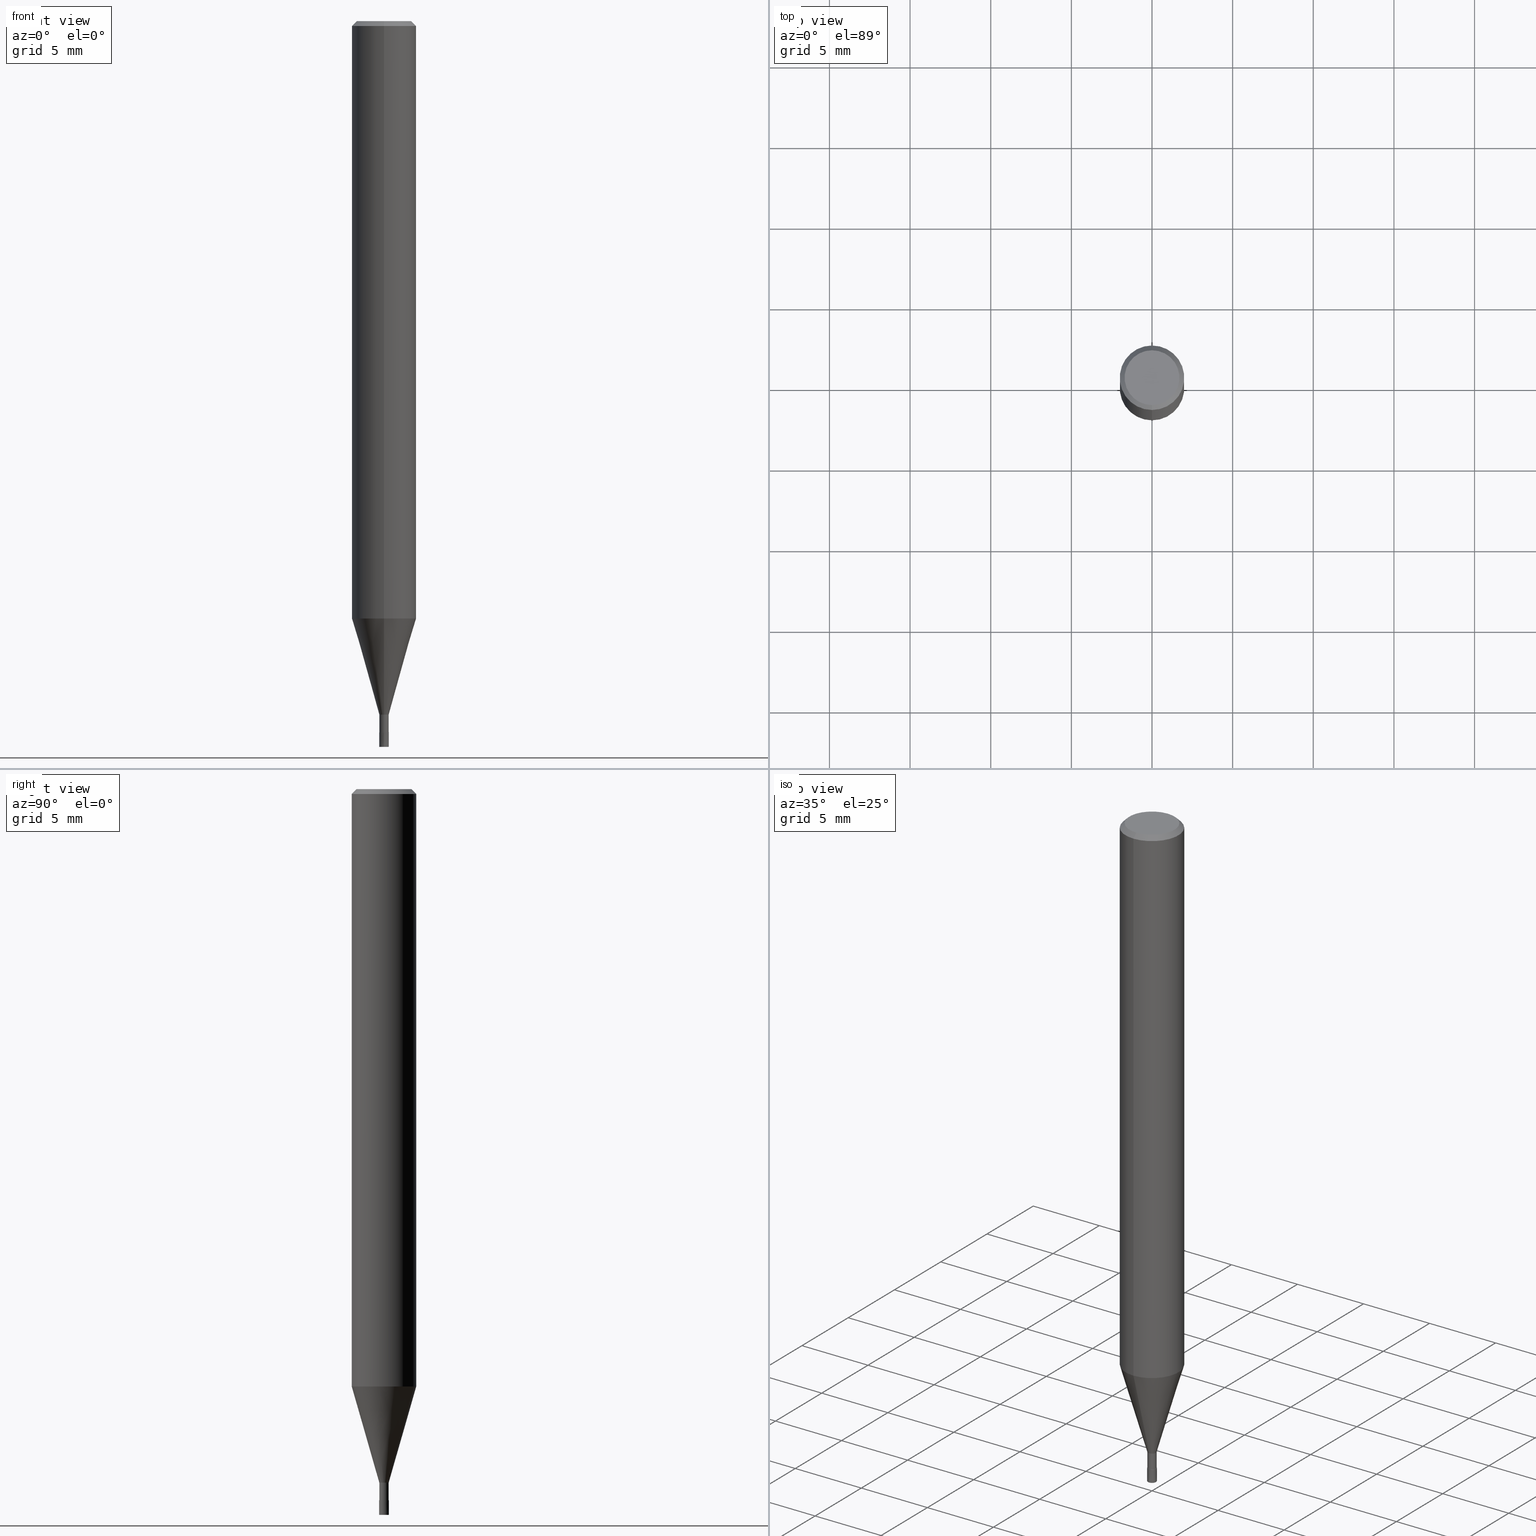
[diagram: canonical four-view strip — front | top / right | iso, engineering-drawing reading convention]
A machine part, canonical four-view strip (front | top / right | iso — engineering-drawing reading convention). The complete STEP part file that produces these views, byte-faithful:
ISO-10303-21;
HEADER;
FILE_DESCRIPTION(('no description'),'unknown implementation level');
FILE_NAME('HLS2006-020-Huellk.stp','  ',('CIMSOURCE GmbH'),('CADClick - KiM GmbH - www.kimweb.de'),'unknown preprocess','ACIS','unknown authorization');
FILE_SCHEMA(('automotive_design'));
ENDSEC;
DATA;
#1=MECHANICAL_DESIGN_GEOMETRIC_PRESENTATION_REPRESENTATION(' ',(#14,#15,#16,#17,#18,#19,#20,#21,#22,#23,#24,#25,#26,#27,#28,#29,#30,#31,#32,#33,#34,#35,#36,#37,#38,#39,#40,#41,#42,#43,#44,#45,#46,#47,#48,#49,#50,#51,#52,#53,#54,#55,#56,#57,#58,#59,#60,#61,#62,#63,#64,#65,#66,#67,#68,#69,#70,#71,#72),#10);
#2=PRODUCT_DEFINITION_CONTEXT('',#73,'design');
#3=APPLICATION_PROTOCOL_DEFINITION('INTERNATIONAL STANDARD','automotive_design',1994,#73);
#4=PRODUCT_CATEGORY_RELATIONSHIP('NONE','NONE',#74,#75);
#5=SHAPE_DEFINITION_REPRESENTATION(#76,#77);
#6=PRODUCT_DEFINITION_CONTEXT('',#78,'design');
#7=APPLICATION_PROTOCOL_DEFINITION('INTERNATIONAL STANDARD','automotive_design',1994,#78);
#8=PRODUCT_CATEGORY_RELATIONSHIP('NONE','NONE',#79,#80);
#9=SHAPE_DEFINITION_REPRESENTATION(#81,#82);
#10= (GEOMETRIC_REPRESENTATION_CONTEXT(3)GLOBAL_UNCERTAINTY_ASSIGNED_CONTEXT((#85))GLOBAL_UNIT_ASSIGNED_CONTEXT((#87,#88,#89))REPRESENTATION_CONTEXT('NONE','WORKSPACE'));
#14=STYLED_ITEM('',(#91),#92);
#15=STYLED_ITEM('',(#93),#94);
#16=STYLED_ITEM('',(#95),#96);
#17=STYLED_ITEM('',(#97),#98);
#18=STYLED_ITEM('',(#99),#100);
#19=STYLED_ITEM('',(#101),#102);
#20=STYLED_ITEM('',(#103),#104);
#21=STYLED_ITEM('',(#105),#106);
#22=STYLED_ITEM('',(#107),#108);
#23=STYLED_ITEM('',(#109),#110);
#24=STYLED_ITEM('',(#111),#112);
#25=STYLED_ITEM('',(#113),#114);
#26=STYLED_ITEM('',(#115),#116);
#27=STYLED_ITEM('',(#117),#118);
#28=STYLED_ITEM('',(#119),#120);
#29=STYLED_ITEM('',(#121),#122);
#30=STYLED_ITEM('',(#123),#124);
#31=STYLED_ITEM('',(#125),#126);
#32=STYLED_ITEM('',(#127),#128);
#33=STYLED_ITEM('',(#129),#130);
#34=STYLED_ITEM('',(#131),#132);
#35=STYLED_ITEM('',(#133),#134);
#36=STYLED_ITEM('',(#135),#136);
#37=STYLED_ITEM('',(#137),#138);
#38=STYLED_ITEM('',(#139),#140);
#39=STYLED_ITEM('',(#141),#142);
#40=STYLED_ITEM('',(#143),#144);
#41=STYLED_ITEM('',(#145),#146);
#42=STYLED_ITEM('',(#147),#148);
#43=STYLED_ITEM('',(#149),#150);
#44=STYLED_ITEM('',(#151),#152);
#45=STYLED_ITEM('',(#153),#154);
#46=STYLED_ITEM('',(#155),#156);
#47=STYLED_ITEM('',(#157),#158);
#48=STYLED_ITEM('',(#159),#160);
#49=STYLED_ITEM('',(#161),#162);
#50=STYLED_ITEM('',(#163),#164);
#51=STYLED_ITEM('',(#165),#166);
#52=STYLED_ITEM('',(#167),#168);
#53=STYLED_ITEM('',(#169),#170);
#54=STYLED_ITEM('',(#171),#172);
#55=STYLED_ITEM('',(#173),#174);
#56=STYLED_ITEM('',(#175),#176);
#57=STYLED_ITEM('',(#177),#178);
#58=STYLED_ITEM('',(#179),#180);
#59=STYLED_ITEM('',(#181),#182);
#60=STYLED_ITEM('',(#183),#184);
#61=STYLED_ITEM('',(#185),#186);
#62=STYLED_ITEM('',(#187),#188);
#63=STYLED_ITEM('',(#189),#190);
#64=STYLED_ITEM('',(#191),#192);
#65=STYLED_ITEM('',(#193),#194);
#66=STYLED_ITEM('',(#195),#196);
#67=STYLED_ITEM('',(#197),#198);
#68=STYLED_ITEM('',(#199),#200);
#69=STYLED_ITEM('',(#201),#202);
#70=STYLED_ITEM('',(#203),#204);
#71=STYLED_ITEM('',(#205),#206);
#72=STYLED_ITEM('',(#207),#208);
#73=APPLICATION_CONTEXT(' ');
#74=PRODUCT_CATEGORY('part','NONE');
#75=PRODUCT_RELATED_PRODUCT_CATEGORY('detail',' ',(#209));
#76=PRODUCT_DEFINITION_SHAPE('NONE','NONE',#210);
#77=ADVANCED_BREP_SHAPE_REPRESENTATION('1',(#100,#211),#10);
#78=APPLICATION_CONTEXT(' ');
#79=PRODUCT_CATEGORY('part','NONE');
#80=PRODUCT_RELATED_PRODUCT_CATEGORY('detail',' ',(#212));
#81=PRODUCT_DEFINITION_SHAPE('NONE','NONE',#213);
#82=ADVANCED_BREP_SHAPE_REPRESENTATION('2',(#174,#214),#10);
#85=UNCERTAINTY_MEASURE_WITH_UNIT(LENGTH_MEASURE(1.0E-006),#87,'','');
#87= (CONVERSION_BASED_UNIT('MILLIMETRE',#217)LENGTH_UNIT()NAMED_UNIT(#220));
#88= (NAMED_UNIT(#222)PLANE_ANGLE_UNIT()SI_UNIT($,.RADIAN.));
#89= (NAMED_UNIT(#222)SOLID_ANGLE_UNIT()SI_UNIT($,.STERADIAN.));
#91=PRESENTATION_STYLE_ASSIGNMENT((#228));
#92=EDGE_CURVE('',#172,#166,#229,.T.);
#93=PRESENTATION_STYLE_ASSIGNMENT((#230));
#94=VERTEX_POINT('',#231);
#95=PRESENTATION_STYLE_ASSIGNMENT((#232));
#96=EDGE_CURVE('',#144,#128,#233,.T.);
#97=PRESENTATION_STYLE_ASSIGNMENT((#234));
#98=VERTEX_POINT('',#235);
#99=PRESENTATION_STYLE_ASSIGNMENT((#236));
#100=MANIFOLD_SOLID_BREP('1',#237);
#101=PRESENTATION_STYLE_ASSIGNMENT((#238));
#102=EDGE_CURVE('',#162,#182,#239,.T.);
#103=PRESENTATION_STYLE_ASSIGNMENT((#240));
#104=ADVANCED_FACE('',(#241),#242,.T.);
#105=PRESENTATION_STYLE_ASSIGNMENT((#243));
#106=EDGE_CURVE('',#98,#94,#244,.T.);
#107=PRESENTATION_STYLE_ASSIGNMENT((#245));
#108=EDGE_CURVE('',#168,#94,#246,.T.);
#109=PRESENTATION_STYLE_ASSIGNMENT((#247));
#110=ADVANCED_FACE('',(#248),#249,.T.);
#111=PRESENTATION_STYLE_ASSIGNMENT((#250));
#112=VERTEX_POINT('',#251);
#113=PRESENTATION_STYLE_ASSIGNMENT((#252));
#114=VERTEX_POINT('',#253);
#115=PRESENTATION_STYLE_ASSIGNMENT((#254));
#116=ADVANCED_FACE('',(#255),#256,.T.);
#117=PRESENTATION_STYLE_ASSIGNMENT((#257));
#118=EDGE_CURVE('',#166,#206,#258,.T.);
#119=PRESENTATION_STYLE_ASSIGNMENT((#259));
#120=VERTEX_POINT('',#260);
#121=PRESENTATION_STYLE_ASSIGNMENT((#261));
#122=EDGE_CURVE('',#198,#120,#262,.T.);
#123=PRESENTATION_STYLE_ASSIGNMENT((#263));
#124=EDGE_CURVE('',#154,#206,#264,.T.);
#125=PRESENTATION_STYLE_ASSIGNMENT((#265));
#126=EDGE_CURVE('',#112,#172,#266,.T.);
#127=PRESENTATION_STYLE_ASSIGNMENT((#267));
#128=VERTEX_POINT('',#268);
#129=PRESENTATION_STYLE_ASSIGNMENT((#269));
#130=ADVANCED_FACE('',(#270),#271,.T.);
#131=PRESENTATION_STYLE_ASSIGNMENT((#272));
#132=EDGE_CURVE('',#98,#180,#273,.T.);
#133=PRESENTATION_STYLE_ASSIGNMENT((#274));
#134=ADVANCED_FACE('',(#275),#276,.T.);
#135=PRESENTATION_STYLE_ASSIGNMENT((#277));
#136=EDGE_CURVE('',#172,#112,#278,.T.);
#137=PRESENTATION_STYLE_ASSIGNMENT((#279));
#138=EDGE_CURVE('',#206,#166,#280,.T.);
#139=PRESENTATION_STYLE_ASSIGNMENT((#281));
#140=EDGE_CURVE('',#206,#112,#282,.T.);
#141=PRESENTATION_STYLE_ASSIGNMENT((#283));
#142=EDGE_CURVE('',#94,#98,#284,.T.);
#143=PRESENTATION_STYLE_ASSIGNMENT((#285));
#144=VERTEX_POINT('',#286);
#145=PRESENTATION_STYLE_ASSIGNMENT((#287));
#146=ADVANCED_FACE('',(#288),#289,.T.);
#147=PRESENTATION_STYLE_ASSIGNMENT((#290));
#148=EDGE_CURVE('',#168,#180,#291,.T.);
#149=PRESENTATION_STYLE_ASSIGNMENT((#292));
#150=ADVANCED_FACE('',(#293,#294),#295,.T.);
#151=PRESENTATION_STYLE_ASSIGNMENT((#296));
#152=EDGE_CURVE('',#154,#114,#297,.T.);
#153=PRESENTATION_STYLE_ASSIGNMENT((#298));
#154=VERTEX_POINT('',#299);
#155=PRESENTATION_STYLE_ASSIGNMENT((#300));
#156=EDGE_CURVE('',#180,#168,#301,.T.);
#157=PRESENTATION_STYLE_ASSIGNMENT((#302));
#158=ADVANCED_FACE('',(#303),#304,.T.);
#159=PRESENTATION_STYLE_ASSIGNMENT((#305));
#160=EDGE_CURVE('',#144,#182,#306,.T.);
#161=PRESENTATION_STYLE_ASSIGNMENT((#307));
#162=VERTEX_POINT('',#308);
#163=PRESENTATION_STYLE_ASSIGNMENT((#309));
#164=EDGE_CURVE('',#120,#198,#310,.T.);
#165=PRESENTATION_STYLE_ASSIGNMENT((#311));
#166=VERTEX_POINT('',#312);
#167=PRESENTATION_STYLE_ASSIGNMENT((#313));
#168=VERTEX_POINT('',#314);
#169=PRESENTATION_STYLE_ASSIGNMENT((#315));
#170=EDGE_CURVE('',#162,#128,#316,.T.);
#171=PRESENTATION_STYLE_ASSIGNMENT((#317));
#172=VERTEX_POINT('',#318);
#173=PRESENTATION_STYLE_ASSIGNMENT((#319));
#174=MANIFOLD_SOLID_BREP('2',#320);
#175=PRESENTATION_STYLE_ASSIGNMENT((#321));
#176=EDGE_CURVE('',#128,#144,#322,.T.);
#177=PRESENTATION_STYLE_ASSIGNMENT((#323));
#178=ADVANCED_FACE('',(#324),#325,.T.);
#179=PRESENTATION_STYLE_ASSIGNMENT((#326));
#180=VERTEX_POINT('',#327);
#181=PRESENTATION_STYLE_ASSIGNMENT((#328));
#182=VERTEX_POINT('',#329);
#183=PRESENTATION_STYLE_ASSIGNMENT((#330));
#184=ADVANCED_FACE('',(#331),#332,.T.);
#185=PRESENTATION_STYLE_ASSIGNMENT((#333));
#186=EDGE_CURVE('',#198,#98,#334,.T.);
#187=PRESENTATION_STYLE_ASSIGNMENT((#335));
#188=EDGE_CURVE('',#114,#154,#336,.T.);
#189=PRESENTATION_STYLE_ASSIGNMENT((#337));
#190=EDGE_CURVE('',#166,#114,#338,.T.);
#191=PRESENTATION_STYLE_ASSIGNMENT((#339));
#192=EDGE_CURVE('',#182,#162,#340,.T.);
#193=PRESENTATION_STYLE_ASSIGNMENT((#341));
#194=ADVANCED_FACE('',(#342),#343,.T.);
#195=PRESENTATION_STYLE_ASSIGNMENT((#344));
#196=ADVANCED_FACE('',(#345),#346,.T.);
#197=PRESENTATION_STYLE_ASSIGNMENT((#347));
#198=VERTEX_POINT('',#348);
#199=PRESENTATION_STYLE_ASSIGNMENT((#349));
#200=ADVANCED_FACE('',(#350),#351,.T.);
#201=PRESENTATION_STYLE_ASSIGNMENT((#352));
#202=EDGE_CURVE('',#94,#120,#353,.T.);
#203=PRESENTATION_STYLE_ASSIGNMENT((#354));
#204=ADVANCED_FACE('',(#355),#356,.T.);
#205=PRESENTATION_STYLE_ASSIGNMENT((#357));
#206=VERTEX_POINT('',#358);
#207=PRESENTATION_STYLE_ASSIGNMENT((#359));
#208=ADVANCED_FACE('',(#360),#361,.T.);
#209=PRODUCT('1','1','PART-1-DESC',(#362));
#210=PRODUCT_DEFINITION('NONE','NONE',#363,#2);
#211=AXIS2_PLACEMENT_3D('',#364,#365,#366);
#212=PRODUCT('2','2','PART-2-DESC',(#367));
#213=PRODUCT_DEFINITION('NONE','NONE',#368,#6);
#214=AXIS2_PLACEMENT_3D('',#369,#370,#371);
#217=LENGTH_MEASURE_WITH_UNIT(LENGTH_MEASURE(1.0),#372);
#220=DIMENSIONAL_EXPONENTS(1.0,0.0,0.0,0.0,0.0,0.0,0.0);
#222=DIMENSIONAL_EXPONENTS(0.0,0.0,0.0,0.0,0.0,0.0,0.0);
#228=CURVE_STYLE('',#373,POSITIVE_LENGTH_MEASURE(1.0E-006),#374);
#229=LINE('',#375,#376);
#230=POINT_STYLE(' ',#377,POSITIVE_LENGTH_MEASURE(1.0E-006),#378);
#231=CARTESIAN_POINT('',(0.0,2.0,-0.299999999999997));
#232=CURVE_STYLE('',#379,POSITIVE_LENGTH_MEASURE(1.0E-006),#380);
#233=CIRCLE('',#381,0.2999);
#234=POINT_STYLE(' ',#382,POSITIVE_LENGTH_MEASURE(1.0E-006),#383);
#235=CARTESIAN_POINT('',(2.44921270764475E-016,-2.0,-0.299999999999997));
#236=SURFACE_STYLE_USAGE(.BOTH.,#384);
#237=CLOSED_SHELL('',(#184,#196,#200,#130,#150,#146,#116,#194,#178,#204,#134));
#238=CURVE_STYLE('',#385,POSITIVE_LENGTH_MEASURE(1.0E-006),#386);
#239=CIRCLE('',#387,0.3);
#240=SURFACE_STYLE_USAGE(.BOTH.,#388);
#241=FACE_OUTER_BOUND('',#389,.T.);
#242=PLANE('',#390);
#243=CURVE_STYLE('',#391,POSITIVE_LENGTH_MEASURE(1.0E-006),#392);
#244=CIRCLE('',#393,2.0);
#245=CURVE_STYLE('',#394,POSITIVE_LENGTH_MEASURE(1.0E-006),#395);
#246=LINE('',#396,#397);
#247=SURFACE_STYLE_USAGE(.BOTH.,#398);
#248=FACE_OUTER_BOUND('',#399,.T.);
#249=CONICAL_SURFACE('',#400,0.29995,0.000111111110653851);
#250=POINT_STYLE(' ',#401,POSITIVE_LENGTH_MEASURE(1.0E-006),#402);
#251=CARTESIAN_POINT('',(2.44915147732706E-016,-1.99995,-37.037));
#252=POINT_STYLE(' ',#403,POSITIVE_LENGTH_MEASURE(1.0E-006),#404);
#253=CARTESIAN_POINT('',(0.0,0.28995,-44.1));
#254=SURFACE_STYLE_USAGE(.BOTH.,#405);
#255=FACE_OUTER_BOUND('',#406,.T.);
#256=CONICAL_SURFACE('',#407,1.85,0.785398163397453);
#257=CURVE_STYLE('',#408,POSITIVE_LENGTH_MEASURE(1.0E-006),#409);
#258=CIRCLE('',#410,0.28995);
#259=POINT_STYLE(' ',#411,POSITIVE_LENGTH_MEASURE(1.0E-006),#412);
#260=CARTESIAN_POINT('',(0.0,2.0,-37.037));
#261=CURVE_STYLE('',#413,POSITIVE_LENGTH_MEASURE(1.0E-006),#414);
#262=CIRCLE('',#415,2.0);
#263=CURVE_STYLE('',#416,POSITIVE_LENGTH_MEASURE(1.0E-006),#417);
#264=LINE('',#418,#419);
#265=CURVE_STYLE('',#420,POSITIVE_LENGTH_MEASURE(1.0E-006),#421);
#266=CIRCLE('',#422,1.99995);
#267=POINT_STYLE(' ',#423,POSITIVE_LENGTH_MEASURE(1.0E-006),#424);
#268=CARTESIAN_POINT('',(3.67259445511331E-017,-0.2999,-44.1));
#269=SURFACE_STYLE_USAGE(.BOTH.,#425);
#270=FACE_OUTER_BOUND('',#426,.T.);
#271=CONICAL_SURFACE('',#427,1.85,0.785398163397453);
#272=CURVE_STYLE('',#428,POSITIVE_LENGTH_MEASURE(1.0E-006),#429);
#273=LINE('',#430,#431);
#274=SURFACE_STYLE_USAGE(.BOTH.,#432);
#275=FACE_OUTER_BOUND('',#433,.T.);
#276=PLANE('',#434);
#277=CURVE_STYLE('',#435,POSITIVE_LENGTH_MEASURE(1.0E-006),#436);
#278=CIRCLE('',#437,1.99995);
#279=CURVE_STYLE('',#438,POSITIVE_LENGTH_MEASURE(1.0E-006),#439);
#280=CIRCLE('',#440,0.28995);
#281=CURVE_STYLE('',#441,POSITIVE_LENGTH_MEASURE(1.0E-006),#442);
#282=LINE('',#443,#444);
#283=CURVE_STYLE('',#445,POSITIVE_LENGTH_MEASURE(1.0E-006),#446);
#284=CIRCLE('',#447,2.0);
#285=POINT_STYLE(' ',#448,POSITIVE_LENGTH_MEASURE(1.0E-006),#449);
#286=CARTESIAN_POINT('',(0.0,0.2999,-44.1));
#287=SURFACE_STYLE_USAGE(.BOTH.,#450);
#288=FACE_OUTER_BOUND('',#451,.T.);
#289=PLANE('',#452);
#290=CURVE_STYLE('',#453,POSITIVE_LENGTH_MEASURE(1.0E-006),#454);
#291=CIRCLE('',#455,1.7);
#292=SURFACE_STYLE_USAGE(.BOTH.,#456);
#293=FACE_OUTER_BOUND('',#457,.T.);
#294=FACE_BOUND('',#458,.T.);
#295=PLANE('',#459);
#296=CURVE_STYLE('',#460,POSITIVE_LENGTH_MEASURE(1.0E-006),#461);
#297=CIRCLE('',#462,0.28995);
#298=POINT_STYLE(' ',#463,POSITIVE_LENGTH_MEASURE(1.0E-006),#464);
#299=CARTESIAN_POINT('',(3.55074612290798E-017,-0.28995,-44.1));
#300=CURVE_STYLE('',#465,POSITIVE_LENGTH_MEASURE(1.0E-006),#466);
#301=CIRCLE('',#467,1.7);
#302=SURFACE_STYLE_USAGE(.BOTH.,#468);
#303=FACE_OUTER_BOUND('',#469,.T.);
#304=CONICAL_SURFACE('',#470,0.29995,0.000111111110653851);
#305=CURVE_STYLE('',#471,POSITIVE_LENGTH_MEASURE(1.0E-006),#472);
#306=LINE('',#473,#474);
#307=POINT_STYLE(' ',#475,POSITIVE_LENGTH_MEASURE(1.0E-006),#476);
#308=CARTESIAN_POINT('',(3.67381906146713E-017,-0.3,-45.0));
#309=CURVE_STYLE('',#477,POSITIVE_LENGTH_MEASURE(1.0E-006),#478);
#310=CIRCLE('',#479,2.0);
#311=POINT_STYLE(' ',#480,POSITIVE_LENGTH_MEASURE(1.0E-006),#481);
#312=CARTESIAN_POINT('',(0.0,0.28995,-43.0));
#313=POINT_STYLE(' ',#482,POSITIVE_LENGTH_MEASURE(1.0E-006),#483);
#314=CARTESIAN_POINT('',(0.0,1.7,0.0));
#315=CURVE_STYLE('',#484,POSITIVE_LENGTH_MEASURE(1.0E-006),#485);
#316=LINE('',#486,#487);
#317=POINT_STYLE(' ',#488,POSITIVE_LENGTH_MEASURE(1.0E-006),#489);
#318=CARTESIAN_POINT('',(0.0,1.99995,-37.037));
#319=SURFACE_STYLE_USAGE(.BOTH.,#490);
#320=CLOSED_SHELL('',(#158,#104,#110,#208));
#321=CURVE_STYLE('',#491,POSITIVE_LENGTH_MEASURE(1.0E-006),#492);
#322=CIRCLE('',#493,0.2999);
#323=SURFACE_STYLE_USAGE(.BOTH.,#494);
#324=FACE_OUTER_BOUND('',#495,.T.);
#325=CONICAL_SURFACE('',#496,1.14495,0.279273950674422);
#326=POINT_STYLE(' ',#497,POSITIVE_LENGTH_MEASURE(1.0E-006),#498);
#327=CARTESIAN_POINT('',(2.08183080149804E-016,-1.7,0.0));
#328=POINT_STYLE(' ',#499,POSITIVE_LENGTH_MEASURE(1.0E-006),#500);
#329=CARTESIAN_POINT('',(0.0,0.3,-45.0));
#330=SURFACE_STYLE_USAGE(.BOTH.,#501);
#331=FACE_OUTER_BOUND('',#502,.T.);
#332=CYLINDRICAL_SURFACE('',#503,0.28995);
#333=CURVE_STYLE('',#504,POSITIVE_LENGTH_MEASURE(1.0E-006),#505);
#334=LINE('',#506,#507);
#335=CURVE_STYLE('',#508,POSITIVE_LENGTH_MEASURE(1.0E-006),#509);
#336=CIRCLE('',#510,0.28995);
#337=CURVE_STYLE('',#511,POSITIVE_LENGTH_MEASURE(1.0E-006),#512);
#338=LINE('',#513,#514);
#339=CURVE_STYLE('',#515,POSITIVE_LENGTH_MEASURE(1.0E-006),#516);
#340=CIRCLE('',#517,0.3);
#341=SURFACE_STYLE_USAGE(.BOTH.,#518);
#342=FACE_OUTER_BOUND('',#519,.T.);
#343=CYLINDRICAL_SURFACE('',#520,2.0);
#344=SURFACE_STYLE_USAGE(.BOTH.,#521);
#345=FACE_OUTER_BOUND('',#522,.T.);
#346=CONICAL_SURFACE('',#523,1.14495,0.279273950674422);
#347=POINT_STYLE(' ',#524,POSITIVE_LENGTH_MEASURE(1.0E-006),#525);
#348=CARTESIAN_POINT('',(2.44921270764475E-016,-2.0,-37.037));
#349=SURFACE_STYLE_USAGE(.BOTH.,#526);
#350=FACE_OUTER_BOUND('',#527,.T.);
#351=CYLINDRICAL_SURFACE('',#528,2.0);
#352=CURVE_STYLE('',#529,POSITIVE_LENGTH_MEASURE(1.0E-006),#530);
#353=LINE('',#531,#532);
#354=SURFACE_STYLE_USAGE(.BOTH.,#533);
#355=FACE_OUTER_BOUND('',#534,.T.);
#356=CYLINDRICAL_SURFACE('',#535,0.28995);
#357=POINT_STYLE(' ',#536,POSITIVE_LENGTH_MEASURE(1.0E-006),#537);
#358=CARTESIAN_POINT('',(3.55074612290798E-017,-0.28995,-43.0));
#359=SURFACE_STYLE_USAGE(.BOTH.,#538);
#360=FACE_OUTER_BOUND('',#539,.T.);
#361=PLANE('',#540);
#362=PRODUCT_CONTEXT('',#73,'mechanical');
#363=PRODUCT_DEFINITION_FORMATION_WITH_SPECIFIED_SOURCE(' ','NONE',#209,.NOT_KNOWN.);
#364=CARTESIAN_POINT('',(0.0,0.0,0.0));
#365=DIRECTION('',(0.0,0.0,1.0));
#366=DIRECTION('',(1.0,0.0,0.0));
#367=PRODUCT_CONTEXT('',#78,'mechanical');
#368=PRODUCT_DEFINITION_FORMATION_WITH_SPECIFIED_SOURCE(' ','NONE',#212,.NOT_KNOWN.);
#369=CARTESIAN_POINT('',(0.0,0.0,0.0));
#370=DIRECTION('',(0.0,0.0,1.0));
#371=DIRECTION('',(1.0,0.0,0.0));
#372= (NAMED_UNIT(#220)LENGTH_UNIT()SI_UNIT(.MILLI.,.METRE.));
#373=DRAUGHTING_PRE_DEFINED_CURVE_FONT('continuous');
#374=COLOUR_RGB('',0.498039215803146,0.498039215803146,0.498039215803146);
#375=CARTESIAN_POINT('',(-1.40211304480893E-016,1.14495,-40.0185));
#376=VECTOR('',#542,1.0);
#377=PRE_DEFINED_MARKER('');
#378=COLOUR_RGB('',0.498039215803146,0.498039215803146,0.498039215803146);
#379=DRAUGHTING_PRE_DEFINED_CURVE_FONT('continuous');
#380=COLOUR_RGB('',0.800000011920929,0.800000011920929,0.800000011920929);
#381=AXIS2_PLACEMENT_3D('',#543,#544,#545);
#382=PRE_DEFINED_MARKER('');
#383=COLOUR_RGB('',0.498039215803146,0.498039215803146,0.498039215803146);
#384=SURFACE_SIDE_STYLE('',(#546));
#385=DRAUGHTING_PRE_DEFINED_CURVE_FONT('continuous');
#386=COLOUR_RGB('',0.800000011920929,0.800000011920929,0.800000011920929);
#387=AXIS2_PLACEMENT_3D('',#547,#548,#549);
#388=SURFACE_SIDE_STYLE('',(#550));
#389=EDGE_LOOP('',(#551,#552));
#390=AXIS2_PLACEMENT_3D('',#553,#554,#555);
#391=DRAUGHTING_PRE_DEFINED_CURVE_FONT('continuous');
#392=COLOUR_RGB('',0.498039215803146,0.498039215803146,0.498039215803146);
#393=AXIS2_PLACEMENT_3D('',#556,#557,#558);
#394=DRAUGHTING_PRE_DEFINED_CURVE_FONT('continuous');
#395=COLOUR_RGB('',0.498039215803146,0.498039215803146,0.498039215803146);
#396=CARTESIAN_POINT('',(-2.2655217545714E-016,1.85,-0.149999999999999));
#397=VECTOR('',#559,1.0);
#398=SURFACE_SIDE_STYLE('',(#560));
#399=EDGE_LOOP('',(#561,#562,#563,#564));
#400=AXIS2_PLACEMENT_3D('',#565,#566,#567);
#401=PRE_DEFINED_MARKER('');
#402=COLOUR_RGB('',0.498039215803146,0.498039215803146,0.498039215803146);
#403=PRE_DEFINED_MARKER('');
#404=COLOUR_RGB('',0.498039215803146,0.498039215803146,0.498039215803146);
#405=SURFACE_SIDE_STYLE('',(#568));
#406=EDGE_LOOP('',(#569,#570,#571,#572));
#407=AXIS2_PLACEMENT_3D('',#573,#574,#575);
#408=DRAUGHTING_PRE_DEFINED_CURVE_FONT('continuous');
#409=COLOUR_RGB('',0.498039215803146,0.498039215803146,0.498039215803146);
#410=AXIS2_PLACEMENT_3D('',#576,#577,#578);
#411=PRE_DEFINED_MARKER('');
#412=COLOUR_RGB('',0.498039215803146,0.498039215803146,0.498039215803146);
#413=DRAUGHTING_PRE_DEFINED_CURVE_FONT('continuous');
#414=COLOUR_RGB('',0.498039215803146,0.498039215803146,0.498039215803146);
#415=AXIS2_PLACEMENT_3D('',#579,#580,#581);
#416=DRAUGHTING_PRE_DEFINED_CURVE_FONT('continuous');
#417=COLOUR_RGB('',0.498039215803146,0.498039215803146,0.498039215803146);
#418=CARTESIAN_POINT('',(3.55074612290798E-017,-0.28995,-43.55));
#419=VECTOR('',#582,1.0);
#420=DRAUGHTING_PRE_DEFINED_CURVE_FONT('continuous');
#421=COLOUR_RGB('',0.498039215803146,0.498039215803146,0.498039215803146);
#422=AXIS2_PLACEMENT_3D('',#583,#584,#585);
#423=PRE_DEFINED_MARKER('');
#424=COLOUR_RGB('',0.800000011920929,0.800000011920929,0.800000011920929);
#425=SURFACE_SIDE_STYLE('',(#586));
#426=EDGE_LOOP('',(#587,#588,#589,#590));
#427=AXIS2_PLACEMENT_3D('',#591,#592,#593);
#428=DRAUGHTING_PRE_DEFINED_CURVE_FONT('continuous');
#429=COLOUR_RGB('',0.498039215803146,0.498039215803146,0.498039215803146);
#430=CARTESIAN_POINT('',(2.2655217545714E-016,-1.85,-0.149999999999999));
#431=VECTOR('',#594,1.0);
#432=SURFACE_SIDE_STYLE('',(#595));
#433=EDGE_LOOP('',(#596,#597));
#434=AXIS2_PLACEMENT_3D('',#598,#599,#600);
#435=DRAUGHTING_PRE_DEFINED_CURVE_FONT('continuous');
#436=COLOUR_RGB('',0.498039215803146,0.498039215803146,0.498039215803146);
#437=AXIS2_PLACEMENT_3D('',#601,#602,#603);
#438=DRAUGHTING_PRE_DEFINED_CURVE_FONT('continuous');
#439=COLOUR_RGB('',0.498039215803146,0.498039215803146,0.498039215803146);
#440=AXIS2_PLACEMENT_3D('',#604,#605,#606);
#441=DRAUGHTING_PRE_DEFINED_CURVE_FONT('continuous');
#442=COLOUR_RGB('',0.498039215803146,0.498039215803146,0.498039215803146);
#443=CARTESIAN_POINT('',(1.40211304480893E-016,-1.14495,-40.0185));
#444=VECTOR('',#607,1.0);
#445=DRAUGHTING_PRE_DEFINED_CURVE_FONT('continuous');
#446=COLOUR_RGB('',0.498039215803146,0.498039215803146,0.498039215803146);
#447=AXIS2_PLACEMENT_3D('',#608,#609,#610);
#448=PRE_DEFINED_MARKER('');
#449=COLOUR_RGB('',0.800000011920929,0.800000011920929,0.800000011920929);
#450=SURFACE_SIDE_STYLE('',(#611));
#451=EDGE_LOOP('',(#612,#613));
#452=AXIS2_PLACEMENT_3D('',#614,#615,#616);
#453=DRAUGHTING_PRE_DEFINED_CURVE_FONT('continuous');
#454=COLOUR_RGB('',0.498039215803146,0.498039215803146,0.498039215803146);
#455=AXIS2_PLACEMENT_3D('',#617,#618,#619);
#456=SURFACE_SIDE_STYLE('',(#620));
#457=EDGE_LOOP('',(#621,#622));
#458=EDGE_LOOP('',(#623,#624));
#459=AXIS2_PLACEMENT_3D('',#625,#626,#627);
#460=DRAUGHTING_PRE_DEFINED_CURVE_FONT('continuous');
#461=COLOUR_RGB('',0.498039215803146,0.498039215803146,0.498039215803146);
#462=AXIS2_PLACEMENT_3D('',#628,#629,#630);
#463=PRE_DEFINED_MARKER('');
#464=COLOUR_RGB('',0.498039215803146,0.498039215803146,0.498039215803146);
#465=DRAUGHTING_PRE_DEFINED_CURVE_FONT('continuous');
#466=COLOUR_RGB('',0.498039215803146,0.498039215803146,0.498039215803146);
#467=AXIS2_PLACEMENT_3D('',#631,#632,#633);
#468=SURFACE_SIDE_STYLE('',(#634));
#469=EDGE_LOOP('',(#635,#636,#637,#638));
#470=AXIS2_PLACEMENT_3D('',#639,#640,#641);
#471=DRAUGHTING_PRE_DEFINED_CURVE_FONT('continuous');
#472=COLOUR_RGB('',0.800000011920929,0.800000011920929,0.800000011920929);
#473=CARTESIAN_POINT('',(-3.67320675829022E-017,0.29995,-44.55));
#474=VECTOR('',#642,1.0);
#475=PRE_DEFINED_MARKER('');
#476=COLOUR_RGB('',0.800000011920929,0.800000011920929,0.800000011920929);
#477=DRAUGHTING_PRE_DEFINED_CURVE_FONT('continuous');
#478=COLOUR_RGB('',0.498039215803146,0.498039215803146,0.498039215803146);
#479=AXIS2_PLACEMENT_3D('',#643,#644,#645);
#480=PRE_DEFINED_MARKER('');
#481=COLOUR_RGB('',0.498039215803146,0.498039215803146,0.498039215803146);
#482=PRE_DEFINED_MARKER('');
#483=COLOUR_RGB('',0.498039215803146,0.498039215803146,0.498039215803146);
#484=DRAUGHTING_PRE_DEFINED_CURVE_FONT('continuous');
#485=COLOUR_RGB('',0.800000011920929,0.800000011920929,0.800000011920929);
#486=CARTESIAN_POINT('',(3.67320675829022E-017,-0.29995,-44.55));
#487=VECTOR('',#646,1.0);
#488=PRE_DEFINED_MARKER('');
#489=COLOUR_RGB('',0.498039215803146,0.498039215803146,0.498039215803146);
#490=SURFACE_SIDE_STYLE('',(#647));
#491=DRAUGHTING_PRE_DEFINED_CURVE_FONT('continuous');
#492=COLOUR_RGB('',0.800000011920929,0.800000011920929,0.800000011920929);
#493=AXIS2_PLACEMENT_3D('',#648,#649,#650);
#494=SURFACE_SIDE_STYLE('',(#651));
#495=EDGE_LOOP('',(#652,#653,#654,#655));
#496=AXIS2_PLACEMENT_3D('',#656,#657,#658);
#497=PRE_DEFINED_MARKER('');
#498=COLOUR_RGB('',0.498039215803146,0.498039215803146,0.498039215803146);
#499=PRE_DEFINED_MARKER('');
#500=COLOUR_RGB('',0.800000011920929,0.800000011920929,0.800000011920929);
#501=SURFACE_SIDE_STYLE('',(#659));
#502=EDGE_LOOP('',(#660,#661,#662,#663));
#503=AXIS2_PLACEMENT_3D('',#664,#665,#666);
#504=DRAUGHTING_PRE_DEFINED_CURVE_FONT('continuous');
#505=COLOUR_RGB('',0.498039215803146,0.498039215803146,0.498039215803146);
#506=CARTESIAN_POINT('',(2.44921270764475E-016,-2.0,-18.6685));
#507=VECTOR('',#667,1.0);
#508=DRAUGHTING_PRE_DEFINED_CURVE_FONT('continuous');
#509=COLOUR_RGB('',0.498039215803146,0.498039215803146,0.498039215803146);
#510=AXIS2_PLACEMENT_3D('',#668,#669,#670);
#511=DRAUGHTING_PRE_DEFINED_CURVE_FONT('continuous');
#512=COLOUR_RGB('',0.498039215803146,0.498039215803146,0.498039215803146);
#513=CARTESIAN_POINT('',(-3.55074612290798E-017,0.28995,-43.55));
#514=VECTOR('',#671,1.0);
#515=DRAUGHTING_PRE_DEFINED_CURVE_FONT('continuous');
#516=COLOUR_RGB('',0.800000011920929,0.800000011920929,0.800000011920929);
#517=AXIS2_PLACEMENT_3D('',#672,#673,#674);
#518=SURFACE_SIDE_STYLE('',(#675));
#519=EDGE_LOOP('',(#676,#677,#678,#679));
#520=AXIS2_PLACEMENT_3D('',#680,#681,#682);
#521=SURFACE_SIDE_STYLE('',(#683));
#522=EDGE_LOOP('',(#684,#685,#686,#687));
#523=AXIS2_PLACEMENT_3D('',#688,#689,#690);
#524=PRE_DEFINED_MARKER('');
#525=COLOUR_RGB('',0.498039215803146,0.498039215803146,0.498039215803146);
#526=SURFACE_SIDE_STYLE('',(#691));
#527=EDGE_LOOP('',(#692,#693,#694,#695));
#528=AXIS2_PLACEMENT_3D('',#696,#697,#698);
#529=DRAUGHTING_PRE_DEFINED_CURVE_FONT('continuous');
#530=COLOUR_RGB('',0.498039215803146,0.498039215803146,0.498039215803146);
#531=CARTESIAN_POINT('',(-2.44921270764475E-016,2.0,-18.6685));
#532=VECTOR('',#699,1.0);
#533=SURFACE_SIDE_STYLE('',(#700));
#534=EDGE_LOOP('',(#701,#702,#703,#704));
#535=AXIS2_PLACEMENT_3D('',#705,#706,#707);
#536=PRE_DEFINED_MARKER('');
#537=COLOUR_RGB('',0.498039215803146,0.498039215803146,0.498039215803146);
#538=SURFACE_SIDE_STYLE('',(#708));
#539=EDGE_LOOP('',(#709,#710));
#540=AXIS2_PLACEMENT_3D('',#711,#712,#713);
#542=DIRECTION('',(3.37572295972149E-017,-0.275657802132482,-0.961255832816368));
#543=CARTESIAN_POINT('',(0.0,0.0,-44.1));
#544=DIRECTION('',(0.0,0.0,-1.0));
#545=DIRECTION('',(0.0,1.0,0.0));
#546=SURFACE_STYLE_FILL_AREA(#714);
#547=CARTESIAN_POINT('',(0.0,0.0,-45.0));
#548=DIRECTION('',(0.0,0.0,-1.0));
#549=DIRECTION('',(0.0,1.0,0.0));
#550=SURFACE_STYLE_FILL_AREA(#715);
#551=ORIENTED_EDGE('',*,*,#96,.F.);
#552=ORIENTED_EDGE('',*,*,#176,.F.);
#553=CARTESIAN_POINT('',(0.0,0.14995,-44.1));
#554=DIRECTION('',(-0.0,0.0,1.0));
#555=DIRECTION('',(0.0,-1.0,0.0));
#556=CARTESIAN_POINT('',(0.0,0.0,-0.299999999999997));
#557=DIRECTION('',(0.0,0.0,-1.0));
#558=DIRECTION('',(0.0,1.0,0.0));
#559=DIRECTION('',(-8.6592745707194E-017,0.707106781186551,-0.707106781186544));
#560=SURFACE_STYLE_FILL_AREA(#716);
#561=ORIENTED_EDGE('',*,*,#160,.T.);
#562=ORIENTED_EDGE('',*,*,#102,.F.);
#563=ORIENTED_EDGE('',*,*,#170,.T.);
#564=ORIENTED_EDGE('',*,*,#176,.T.);
#565=CARTESIAN_POINT('',(0.0,0.0,-44.55));
#566=DIRECTION('',(0.0,-0.0,-1.0));
#567=DIRECTION('',(0.0,1.0,0.0));
#568=SURFACE_STYLE_FILL_AREA(#717);
#569=ORIENTED_EDGE('',*,*,#108,.T.);
#570=ORIENTED_EDGE('',*,*,#106,.F.);
#571=ORIENTED_EDGE('',*,*,#132,.T.);
#572=ORIENTED_EDGE('',*,*,#156,.T.);
#573=CARTESIAN_POINT('',(0.0,0.0,-0.149999999999999));
#574=DIRECTION('',(0.0,-0.0,-1.0));
#575=DIRECTION('',(0.0,1.0,0.0));
#576=CARTESIAN_POINT('',(0.0,0.0,-43.0));
#577=DIRECTION('',(0.0,0.0,-1.0));
#578=DIRECTION('',(0.0,1.0,0.0));
#579=CARTESIAN_POINT('',(0.0,0.0,-37.037));
#580=DIRECTION('',(0.0,0.0,-1.0));
#581=DIRECTION('',(0.0,1.0,0.0));
#582=DIRECTION('',(-0.0,-0.0,1.0));
#583=CARTESIAN_POINT('',(0.0,0.0,-37.037));
#584=DIRECTION('',(0.0,0.0,-1.0));
#585=DIRECTION('',(0.0,1.0,0.0));
#586=SURFACE_STYLE_FILL_AREA(#718);
#587=ORIENTED_EDGE('',*,*,#108,.F.);
#588=ORIENTED_EDGE('',*,*,#148,.T.);
#589=ORIENTED_EDGE('',*,*,#132,.F.);
#590=ORIENTED_EDGE('',*,*,#142,.F.);
#591=CARTESIAN_POINT('',(0.0,0.0,-0.149999999999999));
#592=DIRECTION('',(0.0,-0.0,-1.0));
#593=DIRECTION('',(0.0,1.0,0.0));
#594=DIRECTION('',(-8.6592745707194E-017,0.707106781186551,0.707106781186544));
#595=SURFACE_STYLE_FILL_AREA(#719);
#596=ORIENTED_EDGE('',*,*,#188,.T.);
#597=ORIENTED_EDGE('',*,*,#152,.T.);
#598=CARTESIAN_POINT('',(0.0,0.144975,-44.1));
#599=DIRECTION('',(0.0,0.0,-1.0));
#600=DIRECTION('',(0.0,1.0,0.0));
#601=CARTESIAN_POINT('',(0.0,0.0,-37.037));
#602=DIRECTION('',(0.0,0.0,-1.0));
#603=DIRECTION('',(0.0,1.0,0.0));
#604=CARTESIAN_POINT('',(0.0,0.0,-43.0));
#605=DIRECTION('',(0.0,0.0,-1.0));
#606=DIRECTION('',(0.0,1.0,0.0));
#607=DIRECTION('',(3.37572295972149E-017,-0.275657802132482,0.961255832816368));
#608=CARTESIAN_POINT('',(0.0,0.0,-0.299999999999997));
#609=DIRECTION('',(0.0,0.0,-1.0));
#610=DIRECTION('',(0.0,1.0,0.0));
#611=SURFACE_STYLE_FILL_AREA(#720);
#612=ORIENTED_EDGE('',*,*,#148,.F.);
#613=ORIENTED_EDGE('',*,*,#156,.F.);
#614=CARTESIAN_POINT('',(0.0,0.85,0.0));
#615=DIRECTION('',(-0.0,0.0,1.0));
#616=DIRECTION('',(0.0,-1.0,0.0));
#617=CARTESIAN_POINT('',(0.0,0.0,0.0));
#618=DIRECTION('',(0.0,0.0,-1.0));
#619=DIRECTION('',(0.0,1.0,0.0));
#620=SURFACE_STYLE_FILL_AREA(#721);
#621=ORIENTED_EDGE('',*,*,#164,.T.);
#622=ORIENTED_EDGE('',*,*,#122,.T.);
#623=ORIENTED_EDGE('',*,*,#136,.F.);
#624=ORIENTED_EDGE('',*,*,#126,.F.);
#625=CARTESIAN_POINT('',(0.0,1.0,-37.037));
#626=DIRECTION('',(0.0,0.0,-1.0));
#627=DIRECTION('',(0.0,1.0,0.0));
#628=CARTESIAN_POINT('',(0.0,0.0,-44.1));
#629=DIRECTION('',(0.0,0.0,-1.0));
#630=DIRECTION('',(0.0,1.0,0.0));
#631=CARTESIAN_POINT('',(0.0,0.0,0.0));
#632=DIRECTION('',(0.0,0.0,-1.0));
#633=DIRECTION('',(0.0,1.0,0.0));
#634=SURFACE_STYLE_FILL_AREA(#722);
#635=ORIENTED_EDGE('',*,*,#160,.F.);
#636=ORIENTED_EDGE('',*,*,#96,.T.);
#637=ORIENTED_EDGE('',*,*,#170,.F.);
#638=ORIENTED_EDGE('',*,*,#192,.F.);
#639=CARTESIAN_POINT('',(0.0,0.0,-44.55));
#640=DIRECTION('',(0.0,-0.0,-1.0));
#641=DIRECTION('',(0.0,1.0,0.0));
#642=DIRECTION('',(-1.36067371806994E-020,0.000111111110425228,-0.999999993827161));
#643=CARTESIAN_POINT('',(0.0,0.0,-37.037));
#644=DIRECTION('',(0.0,0.0,-1.0));
#645=DIRECTION('',(0.0,1.0,0.0));
#646=DIRECTION('',(-1.36067371806994E-020,0.000111111110425228,0.999999993827161));
#647=SURFACE_STYLE_FILL_AREA(#723);
#648=CARTESIAN_POINT('',(0.0,0.0,-44.1));
#649=DIRECTION('',(0.0,0.0,-1.0));
#650=DIRECTION('',(0.0,1.0,0.0));
#651=SURFACE_STYLE_FILL_AREA(#724);
#652=ORIENTED_EDGE('',*,*,#92,.T.);
#653=ORIENTED_EDGE('',*,*,#138,.F.);
#654=ORIENTED_EDGE('',*,*,#140,.T.);
#655=ORIENTED_EDGE('',*,*,#126,.T.);
#656=CARTESIAN_POINT('',(0.0,0.0,-40.0185));
#657=DIRECTION('',(-0.0,-0.0,1.0));
#658=DIRECTION('',(0.0,1.0,0.0));
#659=SURFACE_STYLE_FILL_AREA(#725);
#660=ORIENTED_EDGE('',*,*,#190,.F.);
#661=ORIENTED_EDGE('',*,*,#118,.T.);
#662=ORIENTED_EDGE('',*,*,#124,.F.);
#663=ORIENTED_EDGE('',*,*,#188,.F.);
#664=CARTESIAN_POINT('',(0.0,0.0,-43.55));
#665=DIRECTION('',(-0.0,-0.0,1.0));
#666=DIRECTION('',(0.0,1.0,0.0));
#667=DIRECTION('',(-0.0,-0.0,1.0));
#668=CARTESIAN_POINT('',(0.0,0.0,-44.1));
#669=DIRECTION('',(0.0,0.0,-1.0));
#670=DIRECTION('',(0.0,1.0,0.0));
#671=DIRECTION('',(0.0,0.0,-1.0));
#672=CARTESIAN_POINT('',(0.0,0.0,-45.0));
#673=DIRECTION('',(0.0,0.0,-1.0));
#674=DIRECTION('',(0.0,1.0,0.0));
#675=SURFACE_STYLE_FILL_AREA(#726);
#676=ORIENTED_EDGE('',*,*,#202,.T.);
#677=ORIENTED_EDGE('',*,*,#122,.F.);
#678=ORIENTED_EDGE('',*,*,#186,.T.);
#679=ORIENTED_EDGE('',*,*,#106,.T.);
#680=CARTESIAN_POINT('',(0.0,0.0,-18.6685));
#681=DIRECTION('',(-0.0,-0.0,1.0));
#682=DIRECTION('',(0.0,1.0,0.0));
#683=SURFACE_STYLE_FILL_AREA(#727);
#684=ORIENTED_EDGE('',*,*,#92,.F.);
#685=ORIENTED_EDGE('',*,*,#136,.T.);
#686=ORIENTED_EDGE('',*,*,#140,.F.);
#687=ORIENTED_EDGE('',*,*,#118,.F.);
#688=CARTESIAN_POINT('',(0.0,0.0,-40.0185));
#689=DIRECTION('',(-0.0,-0.0,1.0));
#690=DIRECTION('',(0.0,1.0,0.0));
#691=SURFACE_STYLE_FILL_AREA(#728);
#692=ORIENTED_EDGE('',*,*,#202,.F.);
#693=ORIENTED_EDGE('',*,*,#142,.T.);
#694=ORIENTED_EDGE('',*,*,#186,.F.);
#695=ORIENTED_EDGE('',*,*,#164,.F.);
#696=CARTESIAN_POINT('',(0.0,0.0,-18.6685));
#697=DIRECTION('',(-0.0,-0.0,1.0));
#698=DIRECTION('',(0.0,1.0,0.0));
#699=DIRECTION('',(0.0,0.0,-1.0));
#700=SURFACE_STYLE_FILL_AREA(#729);
#701=ORIENTED_EDGE('',*,*,#190,.T.);
#702=ORIENTED_EDGE('',*,*,#152,.F.);
#703=ORIENTED_EDGE('',*,*,#124,.T.);
#704=ORIENTED_EDGE('',*,*,#138,.T.);
#705=CARTESIAN_POINT('',(0.0,0.0,-43.55));
#706=DIRECTION('',(-0.0,-0.0,1.0));
#707=DIRECTION('',(0.0,1.0,0.0));
#708=SURFACE_STYLE_FILL_AREA(#730);
#709=ORIENTED_EDGE('',*,*,#192,.T.);
#710=ORIENTED_EDGE('',*,*,#102,.T.);
#711=CARTESIAN_POINT('',(0.0,0.1475,-45.0));
#712=DIRECTION('',(0.0,0.0,-1.0));
#713=DIRECTION('',(0.0,1.0,0.0));
#714=FILL_AREA_STYLE('',(#731));
#715=FILL_AREA_STYLE('',(#732));
#716=FILL_AREA_STYLE('',(#733));
#717=FILL_AREA_STYLE('',(#734));
#718=FILL_AREA_STYLE('',(#735));
#719=FILL_AREA_STYLE('',(#736));
#720=FILL_AREA_STYLE('',(#737));
#721=FILL_AREA_STYLE('',(#738));
#722=FILL_AREA_STYLE('',(#739));
#723=FILL_AREA_STYLE('',(#740));
#724=FILL_AREA_STYLE('',(#741));
#725=FILL_AREA_STYLE('',(#742));
#726=FILL_AREA_STYLE('',(#743));
#727=FILL_AREA_STYLE('',(#744));
#728=FILL_AREA_STYLE('',(#745));
#729=FILL_AREA_STYLE('',(#746));
#730=FILL_AREA_STYLE('',(#747));
#731=FILL_AREA_STYLE_COLOUR('',#748);
#732=FILL_AREA_STYLE_COLOUR('',#749);
#733=FILL_AREA_STYLE_COLOUR('',#750);
#734=FILL_AREA_STYLE_COLOUR('',#751);
#735=FILL_AREA_STYLE_COLOUR('',#752);
#736=FILL_AREA_STYLE_COLOUR('',#753);
#737=FILL_AREA_STYLE_COLOUR('',#754);
#738=FILL_AREA_STYLE_COLOUR('',#755);
#739=FILL_AREA_STYLE_COLOUR('',#756);
#740=FILL_AREA_STYLE_COLOUR('',#757);
#741=FILL_AREA_STYLE_COLOUR('',#758);
#742=FILL_AREA_STYLE_COLOUR('',#759);
#743=FILL_AREA_STYLE_COLOUR('',#760);
#744=FILL_AREA_STYLE_COLOUR('',#761);
#745=FILL_AREA_STYLE_COLOUR('',#762);
#746=FILL_AREA_STYLE_COLOUR('',#763);
#747=FILL_AREA_STYLE_COLOUR('',#764);
#748=COLOUR_RGB('',0.498039215803146,0.498039215803146,0.498039215803146);
#749=COLOUR_RGB('',0.800000011920929,0.800000011920929,0.800000011920929);
#750=COLOUR_RGB('',0.800000011920929,0.800000011920929,0.800000011920929);
#751=COLOUR_RGB('',0.498039215803146,0.498039215803146,0.498039215803146);
#752=COLOUR_RGB('',0.498039215803146,0.498039215803146,0.498039215803146);
#753=COLOUR_RGB('',0.498039215803146,0.498039215803146,0.498039215803146);
#754=COLOUR_RGB('',0.498039215803146,0.498039215803146,0.498039215803146);
#755=COLOUR_RGB('',0.498039215803146,0.498039215803146,0.498039215803146);
#756=COLOUR_RGB('',0.800000011920929,0.800000011920929,0.800000011920929);
#757=COLOUR_RGB('',0.800000011920929,0.800000011920929,0.800000011920929);
#758=COLOUR_RGB('',0.498039215803146,0.498039215803146,0.498039215803146);
#759=COLOUR_RGB('',0.498039215803146,0.498039215803146,0.498039215803146);
#760=COLOUR_RGB('',0.498039215803146,0.498039215803146,0.498039215803146);
#761=COLOUR_RGB('',0.498039215803146,0.498039215803146,0.498039215803146);
#762=COLOUR_RGB('',0.498039215803146,0.498039215803146,0.498039215803146);
#763=COLOUR_RGB('',0.498039215803146,0.498039215803146,0.498039215803146);
#764=COLOUR_RGB('',0.800000011920929,0.800000011920929,0.800000011920929);
#765=AXIS2_PLACEMENT_3D('PCS',#766,#767,#768);
#766=CARTESIAN_POINT('',(0.0,0.0,0.0));
#767=DIRECTION('',(0.0,0.0,1.0));
#768=DIRECTION('',(1.0,0.0,0.0));
#769=AXIS2_PLACEMENT_3D('CIP',#770,#771,#772);
#770=CARTESIAN_POINT('',(0.0,0.0,-45.0));
#771=DIRECTION('',(0.0,0.0,1.0));
#772=DIRECTION('',(1.0,0.0,0.0));
#773=AXIS2_PLACEMENT_3D('CRP',#774,#775,#776);
#774=CARTESIAN_POINT('',(-0.3,0.0,-45.0));
#775=DIRECTION('',(0.0,0.0,1.0));
#776=DIRECTION('',(1.0,0.0,0.0));
#777=AXIS2_PLACEMENT_3D('MCS',#778,#779,#780);
#778=CARTESIAN_POINT('',(0.0,0.0,-37.037));
#779=DIRECTION('',(0.0,0.0,1.0));
#780=DIRECTION('',(1.0,0.0,0.0));
#781=CONSTRUCTIVE_GEOMETRY_REPRESENTATION_RELATIONSHIP('coordinate systems',$,#77,#782);
#782=CONSTRUCTIVE_GEOMETRY_REPRESENTATION('coordinate systems',(#765,#769,#773,#777),#10);
ENDSEC;
END-ISO-10303-21;
